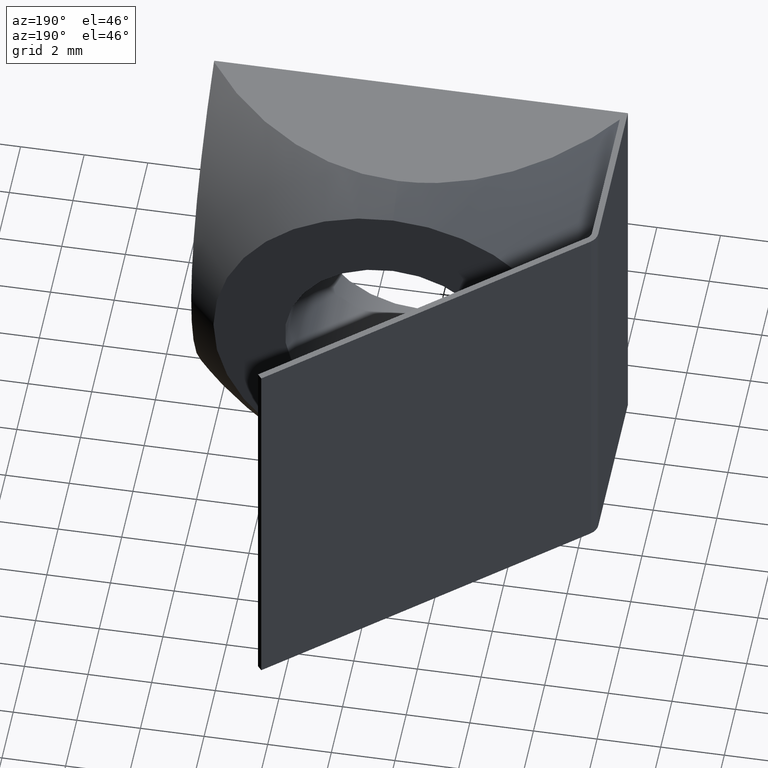
[diagram: clean part render]
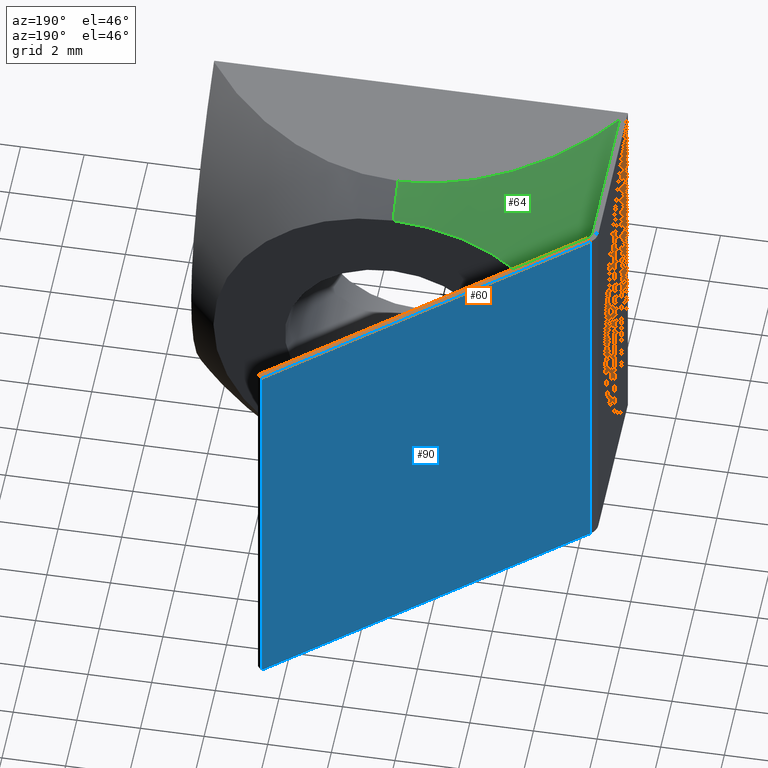
[diagram: same view with three faces highlighted in distinct colors, each labeled with its STEP entity id]
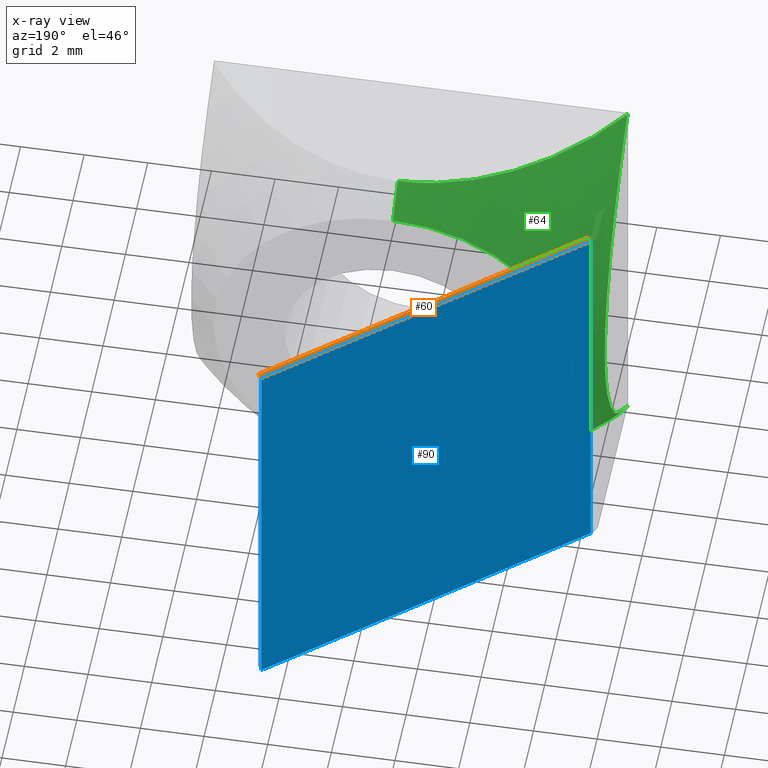
[diagram: x-ray of the same camera — body ghosted, the three highlighted faces saturated]
A machine part, auxiliary view with three faces highlighted in distinct colors.
The next image is the same camera in x-ray (body ghosted, the three faces saturated) — at least one of them is partly hidden behind the body in this view.
Their STEP definitions:

[orange] entity #60 — the highlighted planar face has unit normal (0, 0, 1).
#16 = EDGE_CURVE ( 'NONE', #264, #224, #415, .T. ) ;
#32 = EDGE_CURVE ( 'NONE', #224, #242, #337, .T. ) ;
#36 = EDGE_CURVE ( 'NONE', #491, #242, #573, .T. ) ;
#45 = EDGE_CURVE ( 'NONE', #264, #491, #675, .T. ) ;
#60 = ADVANCED_FACE ( 'NONE', ( #746 ), #667, .T. ) ;
#121 = VECTOR ( 'NONE', #426, 1000.000000000000100 ) ;
#136 = VECTOR ( 'NONE', #711, 1000.000000000000100 ) ;
#157 = VECTOR ( 'NONE', #299, 1000.000000000000000 ) ;
#190 = AXIS2_PLACEMENT_3D ( 'NONE', #292, #492, #624 ) ;
#194 = VECTOR ( 'NONE', #648, 1000.000000000000000 ) ;
#224 = VERTEX_POINT ( 'NONE', #586 ) ;
#242 = VERTEX_POINT ( 'NONE', #581 ) ;
#264 = VERTEX_POINT ( 'NONE', #668 ) ;
#284 = CARTESIAN_POINT ( 'NONE',  ( -6.192836282905961600, 5.496659503858192700, 6.500000000000000000 ) ) ;
#292 = CARTESIAN_POINT ( 'NONE',  ( -6.299999999999999800, 5.266846170922499400, 6.500000000000000000 ) ) ;
#299 = DIRECTION ( 'NONE',  ( 0.6427876096865410300, -0.7660444431189765700, 0.0000000000000000000 ) ) ;
#337 = LINE ( 'NONE', #784, #157 ) ;
#386 = CARTESIAN_POINT ( 'NONE',  ( -6.500000000000000900, 5.500000000000000000, 6.500000000000000000 ) ) ;
#415 = LINE ( 'NONE', #386, #136 ) ;
#426 = DIRECTION ( 'NONE',  ( 0.7660444431189792300, 0.6427876096865379200, 0.0000000000000000000 ) ) ;
#474 = CARTESIAN_POINT ( 'NONE',  ( -6.321393804843269000, 5.649868392481989700, 6.500000000000000000 ) ) ;
#488 = ORIENTED_EDGE ( 'NONE', *, *, #32, .F. ) ;
#490 = ORIENTED_EDGE ( 'NONE', *, *, #36, .T. ) ;
#491 = VERTEX_POINT ( 'NONE', #284 ) ;
#492 = DIRECTION ( 'NONE',  ( 0.0000000000000000000, 0.0000000000000000000, 1.000000000000000000 ) ) ;
#503 = ORIENTED_EDGE ( 'NONE', *, *, #16, .F. ) ;
#511 = ORIENTED_EDGE ( 'NONE', *, *, #45, .T. ) ;
#571 = EDGE_LOOP ( 'NONE', ( #503, #511, #490, #488 ) ) ;
#573 = LINE ( 'NONE', #798, #121 ) ;
#581 = CARTESIAN_POINT ( 'NONE',  ( 2.821090839365060000, 13.06024242761465900, 6.500000000000000000 ) ) ;
#586 = CARTESIAN_POINT ( 'NONE',  ( 2.692533317427751300, 13.21345131623845500, 6.500000000000000000 ) ) ;
#624 = DIRECTION ( 'NONE',  ( 1.000000000000000000, 0.0000000000000000000, -0.0000000000000000000 ) ) ;
#648 = DIRECTION ( 'NONE',  ( 0.6427876096865359200, -0.7660444431189809000, 0.0000000000000000000 ) ) ;
#667 = PLANE ( 'NONE',  #190 ) ;
#668 = CARTESIAN_POINT ( 'NONE',  ( -6.321393804843269000, 5.649868392481989700, 6.500000000000000000 ) ) ;
#675 = LINE ( 'NONE', #474, #194 ) ;
#711 = DIRECTION ( 'NONE',  ( 0.7660444431189792300, 0.6427876096865379200, 0.0000000000000000000 ) ) ;
#746 = FACE_OUTER_BOUND ( 'NONE', #571, .T. ) ;
#784 = CARTESIAN_POINT ( 'NONE',  ( 2.692533317427751300, 13.21345131623845500, 6.500000000000000000 ) ) ;
#798 = CARTESIAN_POINT ( 'NONE',  ( -6.371442478062693500, 5.346791111376203900, 6.500000000000000000 ) ) ;

[blue] entity #90 — the highlighted planar face has unit normal (-0.6428, 0.766, 0).
#16 = EDGE_CURVE ( 'NONE', #264, #224, #415, .T. ) ;
#37 = EDGE_CURVE ( 'NONE', #215, #237, #651, .T. ) ;
#55 = EDGE_CURVE ( 'NONE', #224, #237, #507, .T. ) ;
#56 = EDGE_CURVE ( 'NONE', #264, #215, #577, .T. ) ;
#90 = ADVANCED_FACE ( 'NONE', ( #245 ), #555, .T. ) ;
#123 = VECTOR ( 'NONE', #793, 1000.000000000000000 ) ;
#136 = VECTOR ( 'NONE', #711, 1000.000000000000100 ) ;
#139 = VECTOR ( 'NONE', #665, 1000.000000000000100 ) ;
#148 = VECTOR ( 'NONE', #374, 1000.000000000000000 ) ;
#189 = AXIS2_PLACEMENT_3D ( 'NONE', #763, #645, #647 ) ;
#215 = VERTEX_POINT ( 'NONE', #670 ) ;
#224 = VERTEX_POINT ( 'NONE', #586 ) ;
#231 = CARTESIAN_POINT ( 'NONE',  ( -6.500000000000000900, 5.500000000000000000, -6.500000000000000000 ) ) ;
#237 = VERTEX_POINT ( 'NONE', #344 ) ;
#245 = FACE_OUTER_BOUND ( 'NONE', #745, .T. ) ;
#264 = VERTEX_POINT ( 'NONE', #668 ) ;
#344 = CARTESIAN_POINT ( 'NONE',  ( 2.692533317427751300, 13.21345131623845500, -6.500000000000000000 ) ) ;
#374 = DIRECTION ( 'NONE',  ( -0.0000000000000000000, -0.0000000000000000000, -1.000000000000000000 ) ) ;
#386 = CARTESIAN_POINT ( 'NONE',  ( -6.500000000000000900, 5.500000000000000000, 6.500000000000000000 ) ) ;
#415 = LINE ( 'NONE', #386, #136 ) ;
#419 = CARTESIAN_POINT ( 'NONE',  ( 2.692533317427751300, 13.21345131623845500, 6.500000000000000000 ) ) ;
#441 = ORIENTED_EDGE ( 'NONE', *, *, #55, .T. ) ;
#442 = ORIENTED_EDGE ( 'NONE', *, *, #16, .T. ) ;
#445 = ORIENTED_EDGE ( 'NONE', *, *, #56, .F. ) ;
#446 = ORIENTED_EDGE ( 'NONE', *, *, #37, .F. ) ;
#507 = LINE ( 'NONE', #419, #123 ) ;
#555 = PLANE ( 'NONE',  #189 ) ;
#577 = LINE ( 'NONE', #618, #148 ) ;
#586 = CARTESIAN_POINT ( 'NONE',  ( 2.692533317427751300, 13.21345131623845500, 6.500000000000000000 ) ) ;
#618 = CARTESIAN_POINT ( 'NONE',  ( -6.321393804843269000, 5.649868392481989700, 6.500000000000000000 ) ) ;
#645 = DIRECTION ( 'NONE',  ( -0.6427876096865380300, 0.7660444431189792300, 0.0000000000000000000 ) ) ;
#647 = DIRECTION ( 'NONE',  ( -0.7660444431189791200, -0.6427876096865379200, 0.0000000000000000000 ) ) ;
#651 = LINE ( 'NONE', #231, #139 ) ;
#665 = DIRECTION ( 'NONE',  ( 0.7660444431189792300, 0.6427876096865379200, 0.0000000000000000000 ) ) ;
#668 = CARTESIAN_POINT ( 'NONE',  ( -6.321393804843269000, 5.649868392481989700, 6.500000000000000000 ) ) ;
#670 = CARTESIAN_POINT ( 'NONE',  ( -6.321393804843269000, 5.649868392481989700, -6.500000000000000000 ) ) ;
#711 = DIRECTION ( 'NONE',  ( 0.7660444431189792300, 0.6427876096865379200, 0.0000000000000000000 ) ) ;
#745 = EDGE_LOOP ( 'NONE', ( #446, #445, #442, #441 ) ) ;
#763 = CARTESIAN_POINT ( 'NONE',  ( -6.500000000000000900, 5.500000000000000000, 6.500000000000000000 ) ) ;
#793 = DIRECTION ( 'NONE',  ( -0.0000000000000000000, -0.0000000000000000000, -1.000000000000000000 ) ) ;

[green] entity #64 — the highlighted toroidal blend (fillet) surface has major radius 6.1743 mm and minor (blend) radius 17 mm.
#14 = EDGE_CURVE ( 'NONE', #483, #672, #165, .T. ) ;
#18 = EDGE_CURVE ( 'NONE', #271, #672, #101, .T. ) ;
#30 = EDGE_CURVE ( 'NONE', #597, #235, #167, .T. ) ;
#33 = EDGE_CURVE ( 'NONE', #235, #289, #102, .T. ) ;
#38 = EDGE_CURVE ( 'NONE', #483, #597, #193, .T. ) ;
#48 = EDGE_CURVE ( 'NONE', #289, #271, #98, .T. ) ;
#64 = ADVANCED_FACE ( 'NONE', ( #733 ), #206, .T. ) ;
#98 = B_SPLINE_CURVE_WITH_KNOTS ( 'NONE', 3,
 ( #735, #423, #643, #650, #367, #800, #598, #600, #244, #243, #769, #356, #437, #705, #263, #584, #714, #225, #771, #270, #553, #537 ),
 .UNSPECIFIED., .F., .F.,
 ( 4, 2, 2, 2, 2, 2, 2, 2, 2, 2, 4 ),
 ( 0.05469827054856406900, 0.05668859883386818300, 0.05867892711917230300, 0.05967409126182435900, 0.06066925540447641600, 0.06265958368978052900, 0.06464991197508464200, 0.06664024026038875600, 0.06763540440304081900, 0.06863056854569286900, 0.07062089683099698200 ),
 .UNSPECIFIED. ) ;
#101 = B_SPLINE_CURVE_WITH_KNOTS ( 'NONE', 3,
 ( #484, #298, #541, #786, #776, #749, #777, #792, #412, #208, #463, #465 ),
 .UNSPECIFIED., .F., .F.,
 ( 4, 2, 2, 2, 2, 4 ),
 ( 0.05469827054856388200, 0.05668888045020870100, 0.05867949035185351900, 0.05967479530267592900, 0.06067010025349833800, 0.06266071015514315700 ),
 .UNSPECIFIED. ) ;
#102 = B_SPLINE_CURVE_WITH_KNOTS ( 'NONE', 3,
 ( #424, #348, #687, #585, #685, #332, #269, #266, #639, #628, #293, #211 ),
 .UNSPECIFIED., .F., .F.,
 ( 4, 2, 2, 2, 2, 4 ),
 ( 0.0000000000000000000, 0.001990046668963425500, 0.003980093337926851100, 0.004975116672408563600, 0.005970140006890277100, 0.007960186675853698700 ),
 .UNSPECIFIED. ) ;
#110 = AXIS2_PLACEMENT_3D ( 'NONE', #248, #683, #580 ) ;
#140 = AXIS2_PLACEMENT_3D ( 'NONE', #545, #214, #663 ) ;
#141 = AXIS2_PLACEMENT_3D ( 'NONE', #606, #789, #741 ) ;
#165 = CIRCLE ( 'NONE', #140, 17.00000000000000000 ) ;
#167 = CIRCLE ( 'NONE', #110, 17.00000000000000000 ) ;
#174 = AXIS2_PLACEMENT_3D ( 'NONE', #514, #394, #724 ) ;
#193 = CIRCLE ( 'NONE', #174, 5.644004798131256000 ) ;
#206 = TOROIDAL_SURFACE ( 'NONE', #141, -6.174269187523332600, 17.00000000000000000 ) ;
#208 = CARTESIAN_POINT ( 'NONE',  ( -1.324089535981870500, 3.993502740051847200, 6.500000000000001800 ) ) ;
#211 = CARTESIAN_POINT ( 'NONE',  ( -6.499999999999997300, 0.05089004898358535900, -6.499999999999999100 ) ) ;
#214 = DIRECTION ( 'NONE',  ( 1.000000000000000000, 0.0000000000000000000, -1.224646799147353200E-016 ) ) ;
#225 = CARTESIAN_POINT ( 'NONE',  ( -6.500000000000000900, 2.063493455043966300, 4.786396139126116700 ) ) ;
#235 = VERTEX_POINT ( 'NONE', #748 ) ;
#243 = CARTESIAN_POINT ( 'NONE',  ( -6.500000000000000900, 3.993284070446364800, -1.324997778549733300 ) ) ;
#244 = CARTESIAN_POINT ( 'NONE',  ( -6.499999999999999100, 3.672803873449383100, -2.269417947575904600 ) ) ;
#248 = CARTESIAN_POINT ( 'NONE',  ( 0.0000000000000000000, -7.220000000000002400, 6.174269187523332600 ) ) ;
#253 = EDGE_LOOP ( 'NONE', ( #265, #261, #258, #257, #256, #255 ) ) ;
#255 = ORIENTED_EDGE ( 'NONE', *, *, #18, .T. ) ;
#256 = ORIENTED_EDGE ( 'NONE', *, *, #48, .T. ) ;
#257 = ORIENTED_EDGE ( 'NONE', *, *, #33, .T. ) ;
#258 = ORIENTED_EDGE ( 'NONE', *, *, #30, .T. ) ;
#261 = ORIENTED_EDGE ( 'NONE', *, *, #38, .T. ) ;
#263 = CARTESIAN_POINT ( 'NONE',  ( -6.500000000000000000, 3.255705233841415000, 3.184796144167208400 ) ) ;
#265 = ORIENTED_EDGE ( 'NONE', *, *, #14, .F. ) ;
#266 = CARTESIAN_POINT ( 'NONE',  ( -4.786672189913854700, 2.063239728859812800, -6.499999999999998200 ) ) ;
#269 = CARTESIAN_POINT ( 'NONE',  ( -4.279733229958274000, 2.493680659320166800, -6.499999999999999100 ) ) ;
#270 = CARTESIAN_POINT ( 'NONE',  ( -6.500000000000002700, 1.123578473997164400, 5.715031706449941900 ) ) ;
#271 = VERTEX_POINT ( 'NONE', #417 ) ;
#289 = VERTEX_POINT ( 'NONE', #729 ) ;
#293 = CARTESIAN_POINT ( 'NONE',  ( -6.128323188261311400, 0.6063366316386016300, -6.500000000000000900 ) ) ;
#298 = CARTESIAN_POINT ( 'NONE',  ( -6.130557881894620000, 0.6029970287828481100, 6.500000000000000000 ) ) ;
#332 = CARTESIAN_POINT ( 'NONE',  ( -4.012227267387062000, 2.697749916528825200, -6.500000000000000000 ) ) ;
#348 = CARTESIAN_POINT ( 'NONE',  ( -0.6727004638865354800, 4.109735237956653200, -6.500000000000001800 ) ) ;
#356 = CARTESIAN_POINT ( 'NONE',  ( -6.499999999999999100, 4.109867876356189800, 0.6728596580752527200 ) ) ;
#367 = CARTESIAN_POINT ( 'NONE',  ( -6.500000000000000000, 2.513996523866434400, -4.284981449289193600 ) ) ;
#394 = DIRECTION ( 'NONE',  ( 0.0000000000000000000, -1.000000000000000000, 0.0000000000000000000 ) ) ;
#412 = CARTESIAN_POINT ( 'NONE',  ( -2.268669397716684100, 3.673102568464421000, 6.500000000000000000 ) ) ;
#417 = CARTESIAN_POINT ( 'NONE',  ( -6.500000000000093300, 0.05089004898344541600, 6.500000000000000900 ) ) ;
#423 = CARTESIAN_POINT ( 'NONE',  ( -6.500000000000001800, 0.6029189208889170800, -6.130610147754007100 ) ) ;
#424 = CARTESIAN_POINT ( 'NONE',  ( 0.0000000000000000000, 4.109735237956652300, -6.499999999999999100 ) ) ;
#437 = CARTESIAN_POINT ( 'NONE',  ( -6.500000000000000900, 3.993916635667155400, 1.325323139714466000 ) ) ;
#463 = CARTESIAN_POINT ( 'NONE',  ( -0.6728908548416628900, 4.109735237956652300, 6.500000000000000900 ) ) ;
#465 = CARTESIAN_POINT ( 'NONE',  ( 7.960204194457799400E-016, 4.109735237956652300, 6.500000000000000900 ) ) ;
#483 = VERTEX_POINT ( 'NONE', #734 ) ;
#484 = CARTESIAN_POINT ( 'NONE',  ( -6.500000000000093300, 0.05089004898344541600, 6.500000000000000900 ) ) ;
#514 = CARTESIAN_POINT ( 'NONE',  ( 0.0000000000000000000, 4.999999999999999100, 0.0000000000000000000 ) ) ;
#537 = CARTESIAN_POINT ( 'NONE',  ( -6.500000000000093300, 0.05089004898344541600, 6.500000000000000900 ) ) ;
#541 = CARTESIAN_POINT ( 'NONE',  ( -5.718393653599532600, 1.119872145102291300, 6.500000000000001800 ) ) ;
#545 = CARTESIAN_POINT ( 'NONE',  ( -7.561298997574578500E-016, -7.220000000000002400, -6.174269187523332600 ) ) ;
#553 = CARTESIAN_POINT ( 'NONE',  ( -6.500000000000002700, 0.6064152342343736000, 6.128270591372427100 ) ) ;
#580 = DIRECTION ( 'NONE',  ( 0.0000000000000000000, 0.0000000000000000000, 1.000000000000000000 ) ) ;
#584 = CARTESIAN_POINT ( 'NONE',  ( -6.499999999999998200, 2.698058606819188300, 4.011808767700959100 ) ) ;
#585 = CARTESIAN_POINT ( 'NONE',  ( -2.597829809248589000, 3.560517489800219900, -6.499999999999997300 ) ) ;
#597 = VERTEX_POINT ( 'NONE', #740 ) ;
#598 = CARTESIAN_POINT ( 'NONE',  ( -6.500000000000000000, 3.239278010035576500, -3.174652484528132800 ) ) ;
#600 = CARTESIAN_POINT ( 'NONE',  ( -6.500000000000000900, 3.540326829205480600, -2.580638880078135200 ) ) ;
#606 = CARTESIAN_POINT ( 'NONE',  ( 0.0000000000000000000, -7.220000000000002400, 0.0000000000000000000 ) ) ;
#628 = CARTESIAN_POINT ( 'NONE',  ( -5.715148467929137300, 1.123431959365110500, -6.500000000000000000 ) ) ;
#639 = CARTESIAN_POINT ( 'NONE',  ( -5.027364923004357800, 1.836211336588508900, -6.500000000000000000 ) ) ;
#643 = CARTESIAN_POINT ( 'NONE',  ( -6.500000000000000000, 1.119725732539849500, -5.718510072696506800 ) ) ;
#649 = CARTESIAN_POINT ( 'NONE',  ( 7.960204194457799400E-016, 4.109735237956652300, 6.500000000000000900 ) ) ;
#650 = CARTESIAN_POINT ( 'NONE',  ( -6.500000000000000000, 2.074011848386487800, -4.798117493915410300 ) ) ;
#663 = DIRECTION ( 'NONE',  ( -1.224646799147353200E-016, 0.0000000000000000000, -1.000000000000000000 ) ) ;
#672 = VERTEX_POINT ( 'NONE', #649 ) ;
#683 = DIRECTION ( 'NONE',  ( -1.000000000000000000, 0.0000000000000000000, 0.0000000000000000000 ) ) ;
#685 = CARTESIAN_POINT ( 'NONE',  ( -3.185363310006274200, 3.255375731933094000, -6.500000000000000000 ) ) ;
#687 = CARTESIAN_POINT ( 'NONE',  ( -1.326264826254120100, 3.993687183244005300, -6.499999999999999100 ) ) ;
#705 = CARTESIAN_POINT ( 'NONE',  ( -6.499999999999999100, 3.560839629399119100, 2.597151962111146500 ) ) ;
#714 = CARTESIAN_POINT ( 'NONE',  ( -6.500000000000000000, 2.493975134977553400, 4.279363623376193400 ) ) ;
#724 = DIRECTION ( 'NONE',  ( 0.0000000000000000000, 0.0000000000000000000, -1.000000000000000000 ) ) ;
#729 = CARTESIAN_POINT ( 'NONE',  ( -6.499999999999997300, 0.05089004898358535900, -6.499999999999999100 ) ) ;
#733 = FACE_OUTER_BOUND ( 'NONE', #253, .T. ) ;
#734 = CARTESIAN_POINT ( 'NONE',  ( 9.094269545930501500E-016, 4.999999999999999100, 5.644004798131256000 ) ) ;
#735 = CARTESIAN_POINT ( 'NONE',  ( -6.499999999999997300, 0.05089004898358535900, -6.499999999999999100 ) ) ;
#740 = CARTESIAN_POINT ( 'NONE',  ( 0.0000000000000000000, 4.999999999999999100, -5.644004798131256000 ) ) ;
#741 = DIRECTION ( 'NONE',  ( 0.0000000000000000000, 0.0000000000000000000, -1.000000000000000000 ) ) ;
#748 = CARTESIAN_POINT ( 'NONE',  ( 0.0000000000000000000, 4.109735237956652300, -6.499999999999999100 ) ) ;
#749 = CARTESIAN_POINT ( 'NONE',  ( -3.459394421651953900, 3.070451726834651800, 6.500000000000000900 ) ) ;
#769 = CARTESIAN_POINT ( 'NONE',  ( -6.500000000000000900, 4.109602374153216600, -0.6751484999687205100 ) ) ;
#771 = CARTESIAN_POINT ( 'NONE',  ( -6.500000000000001800, 1.836440676869264900, 5.027131309837757900 ) ) ;
#776 = CARTESIAN_POINT ( 'NONE',  ( -4.284615633495739900, 2.514295792640039600, 6.500000000000000000 ) ) ;
#777 = CARTESIAN_POINT ( 'NONE',  ( -3.174080856937323800, 3.239602677233719000, 6.500000000000000900 ) ) ;
#786 = CARTESIAN_POINT ( 'NONE',  ( -4.797843221465107900, 2.074270503709186200, 6.500000000000000000 ) ) ;
#789 = DIRECTION ( 'NONE',  ( -0.0000000000000000000, -1.000000000000000000, -0.0000000000000000000 ) ) ;
#792 = CARTESIAN_POINT ( 'NONE',  ( -2.579949745945144800, 3.540641047558074300, 6.500000000000001800 ) ) ;
#800 = CARTESIAN_POINT ( 'NONE',  ( -6.500000000000000000, 3.070129253417075400, -3.459911975005362600 ) ) ;